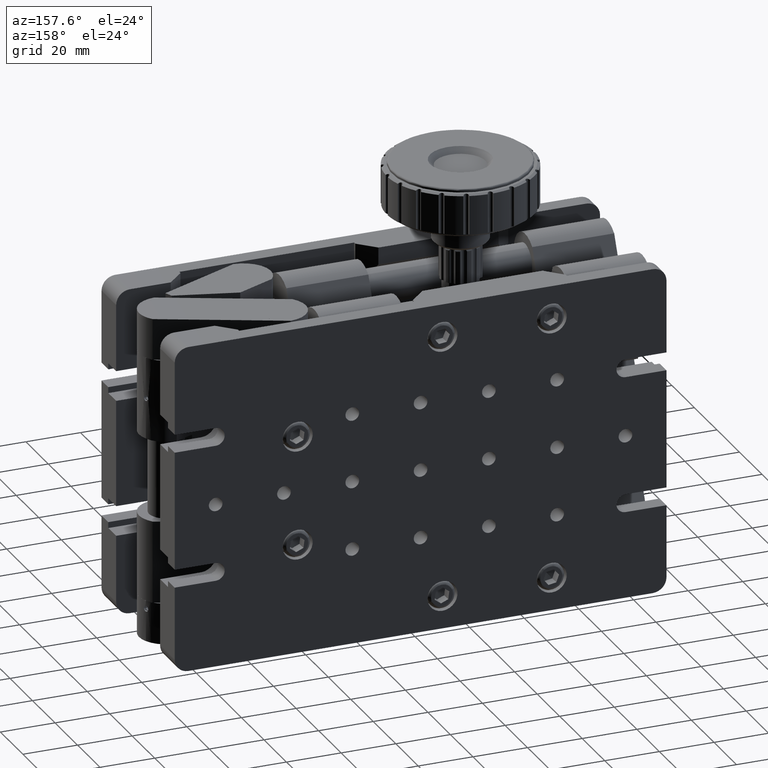
[diagram: clean part render]
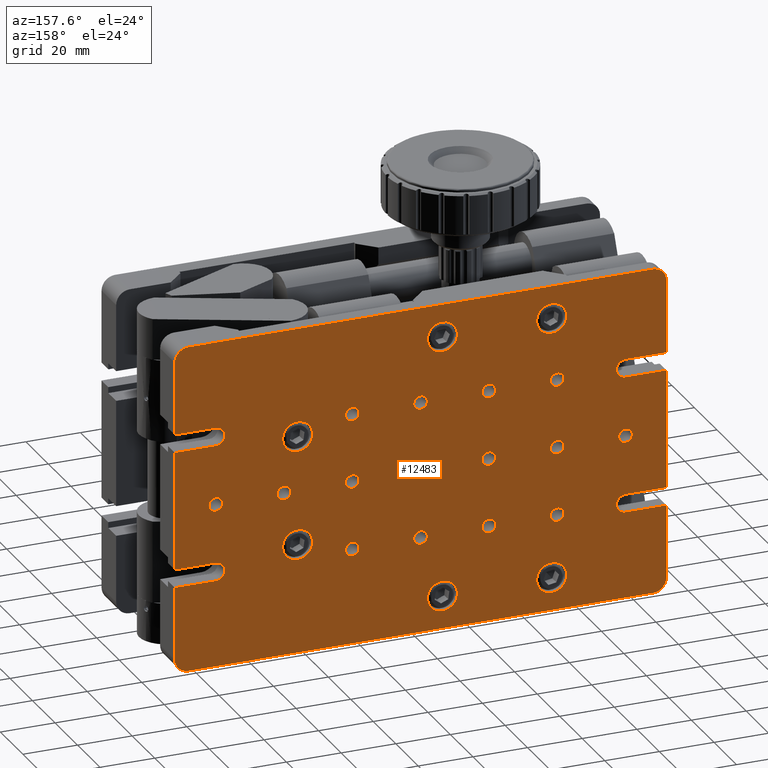
[diagram: same view with one face highlighted and labeled with its STEP entity id]
A machine part, auxiliary view. The second image highlights one B-rep face of the part: STEP entity #12483.
In plain terms, the highlighted planar face has unit normal (-0, -1, 0).
Its self-contained STEP definition (entity closure, byte-faithful):
#534 = DIRECTION ( 'NONE',  ( 0.0000000000000000000, 0.0000000000000000000, 1.000000000000000000 ) ) ;
#547 = CARTESIAN_POINT ( 'NONE',  ( 90.00000000000000000, 65.00000000000000000, 59.99999999999984400 ) ) ;
#565 = DIRECTION ( 'NONE',  ( 0.0000000000000000000, 0.0000000000000000000, 1.000000000000000000 ) ) ;
#655 = CARTESIAN_POINT ( 'NONE',  ( -74.99999999999998600, 65.00000000000000000, -28.30000000000051600 ) ) ;
#688 = EDGE_CURVE ( 'NONE', #40111, #31584, #56969, .T. ) ;
#901 = DIRECTION ( 'NONE',  ( 2.168404344971008900E-019, 1.000000000000000000, -6.938893903907193700E-018 ) ) ;
#1003 = ORIENTED_EDGE ( 'NONE', *, *, #1990, .F. ) ;
#1009 = CARTESIAN_POINT ( 'NONE',  ( -47.99999999999998600, 65.00000000000000000, -47.99999999999990100 ) ) ;
#1182 = CIRCLE ( 'NONE', #25761, 2.499999999999994200 ) ;
#1335 = AXIS2_PLACEMENT_3D ( 'NONE', #8837, #28188, #28830 ) ;
#1473 = ORIENTED_EDGE ( 'NONE', *, *, #30600, .F. ) ;
#1481 = DIRECTION ( 'NONE',  ( 2.168404344971008900E-019, 1.000000000000000000, -6.938893903907193700E-018 ) ) ;
#1528 = EDGE_LOOP ( 'NONE', ( #13879, #8594 ) ) ;
#1593 = LINE ( 'NONE', #34364, #29030 ) ;
#1642 = AXIS2_PLACEMENT_3D ( 'NONE', #24332, #39255, #43904 ) ;
#1675 = ORIENTED_EDGE ( 'NONE', *, *, #62410, .T. ) ;
#1727 = EDGE_CURVE ( 'NONE', #19492, #18528, #5895, .T. ) ;
#1754 = CARTESIAN_POINT ( 'NONE',  ( -1.350840173307179500E-015, 65.00000000000000000, -1.973579583168902200E-014 ) ) ;
#1823 = VERTEX_POINT ( 'NONE', #56544 ) ;
#1843 = EDGE_CURVE ( 'NONE', #58677, #55083, #26433, .T. ) ;
#1942 = DIRECTION ( 'NONE',  ( -1.000000000000000000, 2.168404344971008900E-019, 1.805559322863017600E-035 ) ) ;
#1956 = AXIS2_PLACEMENT_3D ( 'NONE', #24234, #4886, #33431 ) ;
#1990 = EDGE_CURVE ( 'NONE', #32599, #37748, #7411, .T. ) ;
#2027 = VERTEX_POINT ( 'NONE', #19475 ) ;
#2041 = AXIS2_PLACEMENT_3D ( 'NONE', #12025, #2913, #50978 ) ;
#2076 = ORIENTED_EDGE ( 'NONE', *, *, #34004, .F. ) ;
#2216 = CARTESIAN_POINT ( 'NONE',  ( -89.99999999999997200, 65.00000000000000000, 28.30000000000044500 ) ) ;
#2276 = CIRCLE ( 'NONE', #62947, 2.499999999999998700 ) ;
#2471 = CIRCLE ( 'NONE', #35584, 2.499999999999997800 ) ;
#2491 = CARTESIAN_POINT ( 'NONE',  ( -50.00000000000000000, 65.00000000000000000, 22.50000000000009900 ) ) ;
#2748 = EDGE_CURVE ( 'NONE', #50928, #3129, #16417, .T. ) ;
#2877 = CIRCLE ( 'NONE', #12762, 5.499999999999991100 ) ;
#2913 = DIRECTION ( 'NONE',  ( 2.168404344971008900E-019, 1.000000000000000000, -6.938893903907193700E-018 ) ) ;
#2986 = AXIS2_PLACEMENT_3D ( 'NONE', #46365, #26770, #36391 ) ;
#3047 = FACE_BOUND ( 'NONE', #27268, .T. ) ;
#3071 = DIRECTION ( 'NONE',  ( 1.775466667481986000E-034, 6.938893903907159800E-018, 1.000000000000000000 ) ) ;
#3129 = VERTEX_POINT ( 'NONE', #27518 ) ;
#3150 = LINE ( 'NONE', #39070, #35881 ) ;
#3156 = CARTESIAN_POINT ( 'NONE',  ( -75.00000000000001400, 65.00000000000000000, -2.499999999999498200 ) ) ;
#3196 = ORIENTED_EDGE ( 'NONE', *, *, #8914, .F. ) ;
#3480 = CARTESIAN_POINT ( 'NONE',  ( -75.00000000000001400, 65.00000000000000000, 5.039864049947794700E-013 ) ) ;
#3515 = CARTESIAN_POINT ( 'NONE',  ( 45.00000000000001400, 65.00000000000000000, -14.49999999999998200 ) ) ;
#3599 = EDGE_CURVE ( 'NONE', #20577, #16183, #15550, .T. ) ;
#3632 = DIRECTION ( 'NONE',  ( 0.0000000000000000000, 0.0000000000000000000, 1.000000000000000000 ) ) ;
#3633 = ORIENTED_EDGE ( 'NONE', *, *, #47307, .F. ) ;
#3805 = AXIS2_PLACEMENT_3D ( 'NONE', #11362, #30973, #20760 ) ;
#3870 = ORIENTED_EDGE ( 'NONE', *, *, #54249, .F. ) ;
#4018 = LINE ( 'NONE', #11151, #11606 ) ;
#4066 = ORIENTED_EDGE ( 'NONE', *, *, #56409, .T. ) ;
#4482 = VERTEX_POINT ( 'NONE', #6916 ) ;
#4570 = FACE_BOUND ( 'NONE', #49396, .T. ) ;
#4593 = EDGE_CURVE ( 'NONE', #41414, #1823, #34542, .T. ) ;
#4638 = EDGE_CURVE ( 'NONE', #55083, #58677, #62723, .T. ) ;
#4665 = VERTEX_POINT ( 'NONE', #52237 ) ;
#4886 = DIRECTION ( 'NONE',  ( 2.168404344971008900E-019, 1.000000000000000000, -6.938893903907193700E-018 ) ) ;
#4926 = VERTEX_POINT ( 'NONE', #6363 ) ;
#4955 = DIRECTION ( 'NONE',  ( 2.168404344971008900E-019, 1.000000000000000000, -6.938893903907193700E-018 ) ) ;
#5002 = LINE ( 'NONE', #655, #55226 ) ;
#5156 = DIRECTION ( 'NONE',  ( 2.168404344971008900E-019, 1.000000000000000000, -6.938893903907193700E-018 ) ) ;
#5214 = DIRECTION ( 'NONE',  ( 0.0000000000000000000, 0.0000000000000000000, 1.000000000000000000 ) ) ;
#5229 = DIRECTION ( 'NONE',  ( 2.168404344971008900E-019, 1.000000000000000000, -6.938893903907193700E-018 ) ) ;
#5247 = DIRECTION ( 'NONE',  ( -2.168404344971008900E-019, -1.000000000000000000, 6.938893903907159000E-018 ) ) ;
#5302 = FACE_BOUND ( 'NONE', #54898, .T. ) ;
#5428 = ORIENTED_EDGE ( 'NONE', *, *, #51623, .T. ) ;
#5523 = ORIENTED_EDGE ( 'NONE', *, *, #9095, .T. ) ;
#5552 = VECTOR ( 'NONE', #21967, 1000.000000000000000 ) ;
#5643 = DIRECTION ( 'NONE',  ( 2.168404344971008900E-019, 1.000000000000000000, -6.938893903907193700E-018 ) ) ;
#5708 = DIRECTION ( 'NONE',  ( 2.168404344971008900E-019, 1.000000000000000000, -6.938893903907193700E-018 ) ) ;
#5764 = EDGE_CURVE ( 'NONE', #33245, #56184, #51506, .T. ) ;
#5766 = ORIENTED_EDGE ( 'NONE', *, *, #62948, .F. ) ;
#5895 = LINE ( 'NONE', #35497, #20364 ) ;
#5934 = DIRECTION ( 'NONE',  ( 0.0000000000000000000, 0.0000000000000000000, 1.000000000000000000 ) ) ;
#6035 = EDGE_LOOP ( 'NONE', ( #9079, #33664 ) ) ;
#6291 = VERTEX_POINT ( 'NONE', #29705 ) ;
#6363 = CARTESIAN_POINT ( 'NONE',  ( 75.00000000000001400, 65.00000000000000000, 21.70000000000047200 ) ) ;
#6916 = CARTESIAN_POINT ( 'NONE',  ( -1.046087936344572400E-015, 65.00000000000000000, -2.500000000000018700 ) ) ;
#7173 = ORIENTED_EDGE ( 'NONE', *, *, #54859, .F. ) ;
#7174 = ORIENTED_EDGE ( 'NONE', *, *, #32270, .F. ) ;
#7411 = CIRCLE ( 'NONE', #62279, 2.499999999999995100 ) ;
#7544 = VECTOR ( 'NONE', #42578, 1000.000000000000000 ) ;
#7615 = LINE ( 'NONE', #55358, #48689 ) ;
#7762 = EDGE_CURVE ( 'NONE', #13780, #61347, #2877, .T. ) ;
#7828 = DIRECTION ( 'NONE',  ( 1.775466667481986000E-034, 6.938893903907159800E-018, 1.000000000000000000 ) ) ;
#7914 = VERTEX_POINT ( 'NONE', #28740 ) ;
#8168 = DIRECTION ( 'NONE',  ( 0.0000000000000000000, 0.0000000000000000000, 1.000000000000000000 ) ) ;
#8174 = AXIS2_PLACEMENT_3D ( 'NONE', #33508, #8591, #28372 ) ;
#8237 = CARTESIAN_POINT ( 'NONE',  ( -47.99999999999998600, 65.00000000000000000, -47.99999999999990100 ) ) ;
#8238 = DIRECTION ( 'NONE',  ( -2.168404344971008900E-019, -1.000000000000000000, 6.938893903907193700E-018 ) ) ;
#8263 = CARTESIAN_POINT ( 'NONE',  ( -50.00000000000000000, 65.00000000000000000, 25.00000000000010300 ) ) ;
#8464 = CIRCLE ( 'NONE', #27534, 5.499999999999991100 ) ;
#8591 = DIRECTION ( 'NONE',  ( 2.168404344971008900E-019, 1.000000000000000000, -6.938893903907193700E-018 ) ) ;
#8594 = ORIENTED_EDGE ( 'NONE', *, *, #35854, .F. ) ;
#8837 = CARTESIAN_POINT ( 'NONE',  ( 45.00000000000001400, 65.00000000000000000, 19.99999999999992900 ) ) ;
#8867 = VERTEX_POINT ( 'NONE', #36067 ) ;
#8914 = EDGE_CURVE ( 'NONE', #54046, #12780, #19466, .T. ) ;
#8968 = EDGE_LOOP ( 'NONE', ( #20258, #20071 ) ) ;
#9010 = DIRECTION ( 'NONE',  ( 2.168404344971008900E-019, 1.000000000000000000, -6.938893903907193700E-018 ) ) ;
#9079 = ORIENTED_EDGE ( 'NONE', *, *, #53574, .F. ) ;
#9095 = EDGE_CURVE ( 'NONE', #44804, #20577, #5002, .T. ) ;
#9134 = VERTEX_POINT ( 'NONE', #39620 ) ;
#9235 = DIRECTION ( 'NONE',  ( 2.168404344971008900E-019, 1.000000000000000000, -6.938893903907193700E-018 ) ) ;
#9397 = DIRECTION ( 'NONE',  ( -1.000000000000000000, 2.168404344971019900E-019, 1.541976423090491700E-016 ) ) ;
#9412 = AXIS2_PLACEMENT_3D ( 'NONE', #39816, #1481, #16558 ) ;
#9536 = EDGE_CURVE ( 'NONE', #46999, #35868, #59788, .T. ) ;
#9791 = LINE ( 'NONE', #42370, #7544 ) ;
#9805 = CARTESIAN_POINT ( 'NONE',  ( 25.00000000000000400, 65.00000000000000000, 24.99999999999957700 ) ) ;
#9890 = EDGE_CURVE ( 'NONE', #37748, #32599, #39927, .T. ) ;
#10058 = DIRECTION ( 'NONE',  ( 0.0000000000000000000, 0.0000000000000000000, 1.000000000000000000 ) ) ;
#10317 = EDGE_CURVE ( 'NONE', #61347, #13780, #18548, .T. ) ;
#10462 = AXIS2_PLACEMENT_3D ( 'NONE', #30918, #35601, #45371 ) ;
#10493 = DIRECTION ( 'NONE',  ( 1.000000000000000000, -2.168404344971003600E-019, 7.709882115452458400E-017 ) ) ;
#10584 = CARTESIAN_POINT ( 'NONE',  ( -25.00000000000000400, 65.00000000000000000, -22.50000000000014900 ) ) ;
#10631 = EDGE_CURVE ( 'NONE', #42682, #56965, #4018, .T. ) ;
#10639 = FACE_BOUND ( 'NONE', #1528, .T. ) ;
#10710 = CIRCLE ( 'NONE', #14060, 2.499999999999994200 ) ;
#10800 = DIRECTION ( 'NONE',  ( 2.168404344971008900E-019, 1.000000000000000000, -6.938893903907193700E-018 ) ) ;
#10953 = AXIS2_PLACEMENT_3D ( 'NONE', #35217, #5643, #534 ) ;
#11024 = EDGE_CURVE ( 'NONE', #42600, #2027, #38324, .T. ) ;
#11135 = ORIENTED_EDGE ( 'NONE', *, *, #51550, .T. ) ;
#11151 = CARTESIAN_POINT ( 'NONE',  ( -90.00000000000000000, 65.00000000000000000, 59.99999999999987200 ) ) ;
#11260 = CARTESIAN_POINT ( 'NONE',  ( -7.999999999999988500, 65.00000000000000000, -47.99999999999990800 ) ) ;
#11362 = CARTESIAN_POINT ( 'NONE',  ( 84.99999999999998600, 65.00000000000000000, -54.99999999999989300 ) ) ;
#11606 = VECTOR ( 'NONE', #59262, 1000.000000000000000 ) ;
#11726 = ORIENTED_EDGE ( 'NONE', *, *, #40327, .F. ) ;
#11777 = ORIENTED_EDGE ( 'NONE', *, *, #7762, .F. ) ;
#11876 = CARTESIAN_POINT ( 'NONE',  ( -89.99999999999997200, 65.00000000000000000, -28.30000000000050900 ) ) ;
#11974 = LINE ( 'NONE', #56837, #47803 ) ;
#12007 = ORIENTED_EDGE ( 'NONE', *, *, #37114, .F. ) ;
#12025 = CARTESIAN_POINT ( 'NONE',  ( -47.99999999999998600, 65.00000000000000000, 47.99999999999986500 ) ) ;
#12103 = CARTESIAN_POINT ( 'NONE',  ( 84.99999999999998600, 65.00000000000000000, 54.99999999999985100 ) ) ;
#12244 = VERTEX_POINT ( 'NONE', #41899 ) ;
#12265 = ORIENTED_EDGE ( 'NONE', *, *, #11024, .F. ) ;
#12289 = CARTESIAN_POINT ( 'NONE',  ( -47.99999999999998600, 65.00000000000000000, 47.99999999999986500 ) ) ;
#12483 = ADVANCED_FACE ( 'NONE', ( #34309, #45705, #35842, #60160, #38857, #17507, #31184, #24339, #35784, #3047, #53314, #10639, #42627, #61702, #32742, #4570, #18228, #63220, #22830, #35046, #5302, #22100 ), #19912, .F. ) ;
#12563 = EDGE_CURVE ( 'NONE', #35868, #18528, #7615, .T. ) ;
#12707 = AXIS2_PLACEMENT_3D ( 'NONE', #1009, #5708, #25470 ) ;
#12762 = AXIS2_PLACEMENT_3D ( 'NONE', #12289, #21282, #36401 ) ;
#12780 = VERTEX_POINT ( 'NONE', #10584 ) ;
#12841 = EDGE_CURVE ( 'NONE', #4482, #51910, #50147, .T. ) ;
#12972 = AXIS2_PLACEMENT_3D ( 'NONE', #35298, #49099, #5934 ) ;
#13159 = EDGE_CURVE ( 'NONE', #12780, #54046, #38074, .T. ) ;
#13189 = CARTESIAN_POINT ( 'NONE',  ( 75.00000000000001400, 65.00000000000000000, -1.067180197484626000E-012 ) ) ;
#13338 = CIRCLE ( 'NONE', #30341, 3.300000000000004300 ) ;
#13545 = DIRECTION ( 'NONE',  ( 0.0000000000000000000, 0.0000000000000000000, 1.000000000000000000 ) ) ;
#13780 = VERTEX_POINT ( 'NONE', #42176 ) ;
#13879 = ORIENTED_EDGE ( 'NONE', *, *, #29908, .F. ) ;
#14006 = VERTEX_POINT ( 'NONE', #40911 ) ;
#14060 = AXIS2_PLACEMENT_3D ( 'NONE', #49192, #29445, #10058 ) ;
#14105 = AXIS2_PLACEMENT_3D ( 'NONE', #21953, #56000, #29808 ) ;
#14765 = CARTESIAN_POINT ( 'NONE',  ( -90.00000000000000000, 65.00000000000000000, 21.70000000000045400 ) ) ;
#14788 = CIRCLE ( 'NONE', #3805, 4.999999999999990200 ) ;
#14952 = ORIENTED_EDGE ( 'NONE', *, *, #688, .F. ) ;
#14983 = CARTESIAN_POINT ( 'NONE',  ( 45.00000000000001400, 65.00000000000000000, -19.99999999999996800 ) ) ;
#15264 = VERTEX_POINT ( 'NONE', #22255 ) ;
#15302 = CARTESIAN_POINT ( 'NONE',  ( 74.99999999999998600, 65.00000000000000000, 28.30000000000047000 ) ) ;
#15335 = CARTESIAN_POINT ( 'NONE',  ( -50.00000000000000700, 65.00000000000000000, -2.499999999999840600 ) ) ;
#15352 = VERTEX_POINT ( 'NONE', #18590 ) ;
#15371 = AXIS2_PLACEMENT_3D ( 'NONE', #8237, #42288, #60849 ) ;
#15486 = ORIENTED_EDGE ( 'NONE', *, *, #15931, .F. ) ;
#15522 = EDGE_CURVE ( 'NONE', #25947, #4926, #28124, .T. ) ;
#15550 = CIRCLE ( 'NONE', #43193, 3.300000000000004300 ) ;
#15592 = DIRECTION ( 'NONE',  ( 0.0000000000000000000, 0.0000000000000000000, -1.000000000000000000 ) ) ;
#15598 = DIRECTION ( 'NONE',  ( 0.0000000000000000000, 0.0000000000000000000, 1.000000000000000000 ) ) ;
#15716 = VECTOR ( 'NONE', #7828, 1000.000000000000000 ) ;
#15787 = ORIENTED_EDGE ( 'NONE', *, *, #37778, .F. ) ;
#15909 = ORIENTED_EDGE ( 'NONE', *, *, #56234, .F. ) ;
#15931 = EDGE_CURVE ( 'NONE', #2027, #42600, #49338, .T. ) ;
#16127 = ORIENTED_EDGE ( 'NONE', *, *, #13159, .F. ) ;
#16183 = VERTEX_POINT ( 'NONE', #23627 ) ;
#16196 = ORIENTED_EDGE ( 'NONE', *, *, #18428, .T. ) ;
#16244 = ORIENTED_EDGE ( 'NONE', *, *, #30236, .F. ) ;
#16417 = CIRCLE ( 'NONE', #1956, 2.499999999999995100 ) ;
#16555 = EDGE_LOOP ( 'NONE', ( #37322, #32245 ) ) ;
#16558 = DIRECTION ( 'NONE',  ( 0.0000000000000000000, 0.0000000000000000000, 1.000000000000000000 ) ) ;
#16579 = CARTESIAN_POINT ( 'NONE',  ( 25.00000000000000000, 65.00000000000000000, 2.499999999999625200 ) ) ;
#17037 = CARTESIAN_POINT ( 'NONE',  ( 75.00000000000001400, 65.00000000000000000, 21.70000000000047200 ) ) ;
#17221 = ORIENTED_EDGE ( 'NONE', *, *, #33249, .T. ) ;
#17396 = EDGE_LOOP ( 'NONE', ( #35279, #1003 ) ) ;
#17408 = ORIENTED_EDGE ( 'NONE', *, *, #9536, .T. ) ;
#17469 = DIRECTION ( 'NONE',  ( 2.168404344971008900E-019, 1.000000000000000000, -6.938893903907193700E-018 ) ) ;
#17507 = FACE_BOUND ( 'NONE', #44066, .T. ) ;
#17509 = VERTEX_POINT ( 'NONE', #30136 ) ;
#17670 = CARTESIAN_POINT ( 'NONE',  ( 25.00000000000000400, 65.00000000000000000, -25.00000000000032000 ) ) ;
#17747 = VERTEX_POINT ( 'NONE', #37587 ) ;
#17777 = VERTEX_POINT ( 'NONE', #56729 ) ;
#17967 = CARTESIAN_POINT ( 'NONE',  ( 25.00000000000000000, 65.00000000000000000, -3.688839297160016200E-013 ) ) ;
#17980 = ORIENTED_EDGE ( 'NONE', *, *, #5764, .T. ) ;
#18144 = EDGE_CURVE ( 'NONE', #60776, #6291, #23998, .T. ) ;
#18228 = FACE_BOUND ( 'NONE', #27413, .T. ) ;
#18300 = DIRECTION ( 'NONE',  ( 0.0000000000000000000, 0.0000000000000000000, 1.000000000000000000 ) ) ;
#18357 = AXIS2_PLACEMENT_3D ( 'NONE', #45423, #59941, #55413 ) ;
#18428 = EDGE_CURVE ( 'NONE', #17747, #40827, #14788, .T. ) ;
#18528 = VERTEX_POINT ( 'NONE', #2216 ) ;
#18548 = CIRCLE ( 'NONE', #2041, 5.499999999999991100 ) ;
#18590 = CARTESIAN_POINT ( 'NONE',  ( 90.00000000000000000, 65.00000000000000000, -21.70000000000049700 ) ) ;
#18729 = CIRCLE ( 'NONE', #58869, 2.499999999999995100 ) ;
#18759 = CARTESIAN_POINT ( 'NONE',  ( -50.00000000000000700, 65.00000000000000000, 1.548382711104672500E-013 ) ) ;
#18936 = CIRCLE ( 'NONE', #47218, 2.499999999999998700 ) ;
#19068 = CARTESIAN_POINT ( 'NONE',  ( 25.00000000000000400, 65.00000000000000000, 27.49999999999957400 ) ) ;
#19167 = DIRECTION ( 'NONE',  ( 0.0000000000000000000, 0.0000000000000000000, 1.000000000000000000 ) ) ;
#19279 = VERTEX_POINT ( 'NONE', #3515 ) ;
#19466 = CIRCLE ( 'NONE', #44643, 2.499999999999995100 ) ;
#19475 = CARTESIAN_POINT ( 'NONE',  ( 25.00000000000000400, 65.00000000000000000, 22.49999999999958100 ) ) ;
#19492 = VERTEX_POINT ( 'NONE', #53300 ) ;
#19505 = DIRECTION ( 'NONE',  ( -1.775466667481985800E-034, -6.938893903907159000E-018, -1.000000000000000000 ) ) ;
#19560 = VERTEX_POINT ( 'NONE', #24325 ) ;
#19615 = EDGE_CURVE ( 'NONE', #23837, #43301, #36850, .T. ) ;
#19732 = EDGE_CURVE ( 'NONE', #4926, #39968, #29907, .T. ) ;
#19912 = PLANE ( 'NONE',  #36856 ) ;
#20071 = ORIENTED_EDGE ( 'NONE', *, *, #27318, .F. ) ;
#20142 = CARTESIAN_POINT ( 'NONE',  ( -89.99999999999998600, 65.00000000000000000, -59.99999999999990100 ) ) ;
#20155 = DIRECTION ( 'NONE',  ( 2.168404344971008900E-019, 1.000000000000000000, -6.938893903907193700E-018 ) ) ;
#20258 = ORIENTED_EDGE ( 'NONE', *, *, #38233, .F. ) ;
#20364 = VECTOR ( 'NONE', #55453, 1000.000000000000000 ) ;
#20577 = VERTEX_POINT ( 'NONE', #59874 ) ;
#20644 = AXIS2_PLACEMENT_3D ( 'NONE', #12103, #31965, #27041 ) ;
#20693 = CARTESIAN_POINT ( 'NONE',  ( -50.00000000000000000, 65.00000000000000000, 25.00000000000010300 ) ) ;
#20760 = DIRECTION ( 'NONE',  ( 0.0000000000000000000, 0.0000000000000000000, -1.000000000000000000 ) ) ;
#20798 = AXIS2_PLACEMENT_3D ( 'NONE', #17967, #32685, #52027 ) ;
#21282 = DIRECTION ( 'NONE',  ( 2.168404344971008900E-019, 1.000000000000000000, -6.938893903907193700E-018 ) ) ;
#21366 = CIRCLE ( 'NONE', #10462, 2.499999999999998700 ) ;
#21403 = EDGE_CURVE ( 'NONE', #9134, #52267, #25074, .T. ) ;
#21602 = CIRCLE ( 'NONE', #26114, 5.499999999999987600 ) ;
#21792 = CIRCLE ( 'NONE', #40966, 2.499999999999997800 ) ;
#21830 = DIRECTION ( 'NONE',  ( 0.0000000000000000000, 0.0000000000000000000, 1.000000000000000000 ) ) ;
#21831 = ORIENTED_EDGE ( 'NONE', *, *, #12563, .T. ) ;
#21953 = CARTESIAN_POINT ( 'NONE',  ( -25.00000000000000400, 65.00000000000000000, 24.99999999999975500 ) ) ;
#21967 = DIRECTION ( 'NONE',  ( 1.000000000000000000, -2.168404344970992700E-019, 2.312964634635737500E-016 ) ) ;
#22044 = VECTOR ( 'NONE', #57038, 1000.000000000000000 ) ;
#22050 = DIRECTION ( 'NONE',  ( 2.168404344971008900E-019, 1.000000000000000000, -6.938893903907193700E-018 ) ) ;
#22100 = FACE_BOUND ( 'NONE', #45671, .T. ) ;
#22102 = AXIS2_PLACEMENT_3D ( 'NONE', #9805, #38804, #53461 ) ;
#22219 = ORIENTED_EDGE ( 'NONE', *, *, #1843, .F. ) ;
#22255 = CARTESIAN_POINT ( 'NONE',  ( 90.00000000000000000, 65.00000000000000000, 54.99999999999985100 ) ) ;
#22319 = EDGE_LOOP ( 'NONE', ( #12265, #15486 ) ) ;
#22534 = CARTESIAN_POINT ( 'NONE',  ( 90.00000000000000000, 65.00000000000000000, 59.99999999999984400 ) ) ;
#22621 = CARTESIAN_POINT ( 'NONE',  ( 90.00000000000000000, 65.00000000000000000, 59.99999999999984400 ) ) ;
#22723 = CARTESIAN_POINT ( 'NONE',  ( 75.00000000000001400, 65.00000000000000000, -25.00000000000102000 ) ) ;
#22830 = FACE_BOUND ( 'NONE', #50872, .T. ) ;
#22938 = VERTEX_POINT ( 'NONE', #40630 ) ;
#22997 = EDGE_CURVE ( 'NONE', #17747, #12244, #23404, .T. ) ;
#23035 = VERTEX_POINT ( 'NONE', #3156 ) ;
#23045 = ORIENTED_EDGE ( 'NONE', *, *, #3599, .T. ) ;
#23225 = CARTESIAN_POINT ( 'NONE',  ( -50.00000000000000700, 65.00000000000000000, 2.500000000000145700 ) ) ;
#23404 = LINE ( 'NONE', #22534, #15716 ) ;
#23461 = AXIS2_PLACEMENT_3D ( 'NONE', #18759, #53037, #23872 ) ;
#23627 = CARTESIAN_POINT ( 'NONE',  ( -74.99999999999998600, 65.00000000000000000, -21.70000000000051100 ) ) ;
#23734 = DIRECTION ( 'NONE',  ( 0.0000000000000000000, 0.0000000000000000000, 1.000000000000000000 ) ) ;
#23837 = VERTEX_POINT ( 'NONE', #2491 ) ;
#23872 = DIRECTION ( 'NONE',  ( 0.0000000000000000000, 0.0000000000000000000, 1.000000000000000000 ) ) ;
#23998 = CIRCLE ( 'NONE', #31987, 2.499999999999997800 ) ;
#24156 = CARTESIAN_POINT ( 'NONE',  ( 3.802332240053021700E-015, 65.00000000000000000, 24.99999999999992900 ) ) ;
#24194 = ORIENTED_EDGE ( 'NONE', *, *, #4638, .F. ) ;
#24234 = CARTESIAN_POINT ( 'NONE',  ( 25.00000000000000400, 65.00000000000000000, -25.00000000000032000 ) ) ;
#24325 = CARTESIAN_POINT ( 'NONE',  ( -75.00000000000001400, 65.00000000000000000, 2.500000000000501800 ) ) ;
#24332 = CARTESIAN_POINT ( 'NONE',  ( 25.00000000000000400, 65.00000000000000000, 24.99999999999957700 ) ) ;
#24339 = FACE_BOUND ( 'NONE', #22319, .T. ) ;
#24487 = DIRECTION ( 'NONE',  ( 2.168404344971008900E-019, 1.000000000000000000, -6.938893903907193700E-018 ) ) ;
#25074 = CIRCLE ( 'NONE', #55362, 5.499999999999991100 ) ;
#25470 = DIRECTION ( 'NONE',  ( 0.0000000000000000000, 0.0000000000000000000, 1.000000000000000000 ) ) ;
#25513 = CARTESIAN_POINT ( 'NONE',  ( 4.107084477015628400E-015, 65.00000000000000000, -27.49999999999996800 ) ) ;
#25651 = LINE ( 'NONE', #37983, #63026 ) ;
#25653 = ORIENTED_EDGE ( 'NONE', *, *, #49417, .F. ) ;
#25761 = AXIS2_PLACEMENT_3D ( 'NONE', #46146, #61311, #51239 ) ;
#25881 = ORIENTED_EDGE ( 'NONE', *, *, #62591, .F. ) ;
#25947 = VERTEX_POINT ( 'NONE', #15302 ) ;
#25980 = CIRCLE ( 'NONE', #36461, 4.999999999999990200 ) ;
#26114 = AXIS2_PLACEMENT_3D ( 'NONE', #62862, #43448, #28342 ) ;
#26306 = AXIS2_PLACEMENT_3D ( 'NONE', #43120, #42695, #23734 ) ;
#26406 = DIRECTION ( 'NONE',  ( 2.168404344971008900E-019, 1.000000000000000000, -6.938893903907193700E-018 ) ) ;
#26428 = DIRECTION ( 'NONE',  ( 0.0000000000000000000, 0.0000000000000000000, 1.000000000000000000 ) ) ;
#26433 = CIRCLE ( 'NONE', #26306, 2.499999999999994200 ) ;
#26734 = DIRECTION ( 'NONE',  ( 0.0000000000000000000, 0.0000000000000000000, -1.000000000000000000 ) ) ;
#26770 = DIRECTION ( 'NONE',  ( 2.168404344971008900E-019, 1.000000000000000000, -6.938893903907193700E-018 ) ) ;
#26777 = CARTESIAN_POINT ( 'NONE',  ( -74.99999999999998600, 65.00000000000000000, 28.30000000000045200 ) ) ;
#26915 = DIRECTION ( 'NONE',  ( -1.000000000000000000, 2.168404344970976800E-019, -4.625929269271475100E-016 ) ) ;
#27012 = EDGE_LOOP ( 'NONE', ( #11777, #50734 ) ) ;
#27031 = EDGE_CURVE ( 'NONE', #19492, #36031, #25980, .T. ) ;
#27041 = DIRECTION ( 'NONE',  ( 0.0000000000000000000, 0.0000000000000000000, -1.000000000000000000 ) ) ;
#27268 = EDGE_LOOP ( 'NONE', ( #55628, #15909 ) ) ;
#27318 = EDGE_CURVE ( 'NONE', #17509, #36159, #10710, .T. ) ;
#27413 = EDGE_LOOP ( 'NONE', ( #16127, #3196 ) ) ;
#27437 = DIRECTION ( 'NONE',  ( 1.156482317317873500E-016, -6.938893903907159000E-018, -1.000000000000000000 ) ) ;
#27518 = CARTESIAN_POINT ( 'NONE',  ( 25.00000000000000400, 65.00000000000000000, -27.50000000000032000 ) ) ;
#27531 = ORIENTED_EDGE ( 'NONE', *, *, #31531, .F. ) ;
#27534 = AXIS2_PLACEMENT_3D ( 'NONE', #11260, #45319, #46375 ) ;
#27976 = VERTEX_POINT ( 'NONE', #25513 ) ;
#28056 = CIRCLE ( 'NONE', #15371, 5.499999999999991100 ) ;
#28124 = CIRCLE ( 'NONE', #18357, 3.300000000000004300 ) ;
#28188 = DIRECTION ( 'NONE',  ( 2.168404344971008900E-019, 1.000000000000000000, -6.938893903907193700E-018 ) ) ;
#28246 = CIRCLE ( 'NONE', #8174, 2.499999999999991100 ) ;
#28342 = DIRECTION ( 'NONE',  ( 0.0000000000000000000, 0.0000000000000000000, 1.000000000000000000 ) ) ;
#28372 = DIRECTION ( 'NONE',  ( 0.0000000000000000000, 0.0000000000000000000, 1.000000000000000000 ) ) ;
#28532 = DIRECTION ( 'NONE',  ( 2.168404344971008900E-019, 1.000000000000000000, -6.938893903907193700E-018 ) ) ;
#28740 = CARTESIAN_POINT ( 'NONE',  ( -50.00000000000000000, 65.00000000000000000, -22.49999999999979700 ) ) ;
#28830 = DIRECTION ( 'NONE',  ( 0.0000000000000000000, 0.0000000000000000000, 1.000000000000000000 ) ) ;
#29030 = VECTOR ( 'NONE', #10493, 1000.000000000000000 ) ;
#29202 = CIRCLE ( 'NONE', #10953, 2.499999999999997800 ) ;
#29390 = DIRECTION ( 'NONE',  ( 0.0000000000000000000, 0.0000000000000000000, 1.000000000000000000 ) ) ;
#29445 = DIRECTION ( 'NONE',  ( 2.168404344971008900E-019, 1.000000000000000000, -6.938893903907193700E-018 ) ) ;
#29705 = CARTESIAN_POINT ( 'NONE',  ( 75.00000000000001400, 65.00000000000000000, -2.500000000001069400 ) ) ;
#29762 = EDGE_CURVE ( 'NONE', #15352, #55215, #9791, .T. ) ;
#29778 = CARTESIAN_POINT ( 'NONE',  ( -84.99999999999997200, 65.00000000000000000, -54.99999999999990100 ) ) ;
#29808 = DIRECTION ( 'NONE',  ( 0.0000000000000000000, 0.0000000000000000000, 1.000000000000000000 ) ) ;
#29827 = ORIENTED_EDGE ( 'NONE', *, *, #61901, .F. ) ;
#29883 = DIRECTION ( 'NONE',  ( -2.168404344971008900E-019, -1.000000000000000000, 6.938893903907193700E-018 ) ) ;
#29907 = LINE ( 'NONE', #17037, #5552 ) ;
#29908 = EDGE_CURVE ( 'NONE', #54789, #39619, #53958, .T. ) ;
#29963 = CARTESIAN_POINT ( 'NONE',  ( -1.350840173307179500E-015, 65.00000000000000000, 2.499999999999974200 ) ) ;
#30061 = AXIS2_PLACEMENT_3D ( 'NONE', #17670, #28532, #19167 ) ;
#30136 = CARTESIAN_POINT ( 'NONE',  ( -25.00000000000000700, 65.00000000000000000, -2.500000000000193200 ) ) ;
#30236 = EDGE_CURVE ( 'NONE', #51042, #8867, #28056, .T. ) ;
#30341 = AXIS2_PLACEMENT_3D ( 'NONE', #22723, #8238, #26734 ) ;
#30396 = AXIS2_PLACEMENT_3D ( 'NONE', #20693, #901, #50235 ) ;
#30407 = AXIS2_PLACEMENT_3D ( 'NONE', #53985, #20155, #565 ) ;
#30576 = CARTESIAN_POINT ( 'NONE',  ( -25.00000000000000700, 65.00000000000000000, 2.499999999999800200 ) ) ;
#30600 = EDGE_CURVE ( 'NONE', #44804, #56184, #11974, .T. ) ;
#30712 = AXIS2_PLACEMENT_3D ( 'NONE', #56958, #22050, #46733 ) ;
#30918 = CARTESIAN_POINT ( 'NONE',  ( -50.00000000000000000, 65.00000000000000000, -24.99999999999979700 ) ) ;
#30973 = DIRECTION ( 'NONE',  ( 2.168404344971008900E-019, 1.000000000000000000, -6.938893903907193700E-018 ) ) ;
#31184 = FACE_BOUND ( 'NONE', #32894, .T. ) ;
#31275 = CARTESIAN_POINT ( 'NONE',  ( 25.00000000000000000, 65.00000000000000000, -2.500000000000367700 ) ) ;
#31469 = CIRCLE ( 'NONE', #63205, 5.499999999999987600 ) ;
#31531 = EDGE_CURVE ( 'NONE', #23035, #19560, #48400, .T. ) ;
#31584 = VERTEX_POINT ( 'NONE', #23225 ) ;
#31965 = DIRECTION ( 'NONE',  ( 2.168404344971008900E-019, 1.000000000000000000, -6.938893903907193700E-018 ) ) ;
#31987 = AXIS2_PLACEMENT_3D ( 'NONE', #46221, #26406, #46644 ) ;
#32066 = CARTESIAN_POINT ( 'NONE',  ( -74.99999999999998600, 65.00000000000000000, -21.70000000000051100 ) ) ;
#32245 = ORIENTED_EDGE ( 'NONE', *, *, #39256, .F. ) ;
#32270 = EDGE_CURVE ( 'NONE', #51910, #4482, #47625, .T. ) ;
#32333 = DIRECTION ( 'NONE',  ( 2.168404344971008900E-019, 1.000000000000000000, -6.938893903907193700E-018 ) ) ;
#32389 = EDGE_LOOP ( 'NONE', ( #49266, #38433 ) ) ;
#32427 = ORIENTED_EDGE ( 'NONE', *, *, #27031, .T. ) ;
#32541 = ORIENTED_EDGE ( 'NONE', *, *, #21403, .F. ) ;
#32599 = VERTEX_POINT ( 'NONE', #33059 ) ;
#32685 = DIRECTION ( 'NONE',  ( 2.168404344971008900E-019, 1.000000000000000000, -6.938893903907193700E-018 ) ) ;
#32742 = FACE_BOUND ( 'NONE', #60417, .T. ) ;
#32855 = CIRCLE ( 'NONE', #41556, 2.499999999999995100 ) ;
#32894 = EDGE_LOOP ( 'NONE', ( #36709, #25881 ) ) ;
#32981 = CARTESIAN_POINT ( 'NONE',  ( -84.99999999999998600, 65.00000000000000000, 59.99999999999987200 ) ) ;
#33004 = CARTESIAN_POINT ( 'NONE',  ( -75.00000000000001400, 65.00000000000000000, 21.70000000000045400 ) ) ;
#33023 = CIRCLE ( 'NONE', #60474, 5.499999999999987600 ) ;
#33044 = CIRCLE ( 'NONE', #12707, 5.499999999999991100 ) ;
#33059 = CARTESIAN_POINT ( 'NONE',  ( 4.107084477015628400E-015, 65.00000000000000000, 22.49999999999992900 ) ) ;
#33245 = VERTEX_POINT ( 'NONE', #51621 ) ;
#33249 = EDGE_CURVE ( 'NONE', #16183, #56965, #51240, .T. ) ;
#33431 = DIRECTION ( 'NONE',  ( 0.0000000000000000000, 0.0000000000000000000, 1.000000000000000000 ) ) ;
#33508 = CARTESIAN_POINT ( 'NONE',  ( -50.00000000000000700, 65.00000000000000000, 1.548382711104672500E-013 ) ) ;
#33516 = EDGE_CURVE ( 'NONE', #19279, #4665, #33023, .T. ) ;
#33664 = ORIENTED_EDGE ( 'NONE', *, *, #4593, .F. ) ;
#33832 = CARTESIAN_POINT ( 'NONE',  ( -89.99999999999997200, 65.00000000000000000, -21.70000000000051800 ) ) ;
#33972 = DIRECTION ( 'NONE',  ( 2.168404344971008900E-019, 1.000000000000000000, -6.938893903907193700E-018 ) ) ;
#34004 = EDGE_CURVE ( 'NONE', #52267, #9134, #36002, .T. ) ;
#34076 = VERTEX_POINT ( 'NONE', #61252 ) ;
#34126 = EDGE_CURVE ( 'NONE', #37441, #14006, #55696, .T. ) ;
#34207 = CIRCLE ( 'NONE', #20644, 4.999999999999990200 ) ;
#34309 = FACE_OUTER_BOUND ( 'NONE', #36008, .T. ) ;
#34364 = CARTESIAN_POINT ( 'NONE',  ( -89.99999999999998600, 65.00000000000000000, -59.99999999999990100 ) ) ;
#34542 = CIRCLE ( 'NONE', #48116, 2.499999999999995100 ) ;
#34695 = DIRECTION ( 'NONE',  ( 0.0000000000000000000, 0.0000000000000000000, -1.000000000000000000 ) ) ;
#34876 = CARTESIAN_POINT ( 'NONE',  ( 75.00000000000001400, 65.00000000000000000, -28.30000000000049800 ) ) ;
#35046 = FACE_BOUND ( 'NONE', #42088, .T. ) ;
#35059 = AXIS2_PLACEMENT_3D ( 'NONE', #54144, #29883, #15592 ) ;
#35130 = CARTESIAN_POINT ( 'NONE',  ( -89.99999999999998600, 65.00000000000000000, -54.99999999999987900 ) ) ;
#35139 = CIRCLE ( 'NONE', #47318, 2.499999999999997800 ) ;
#35217 = CARTESIAN_POINT ( 'NONE',  ( 50.00000000000000000, 65.00000000000000000, -1.973579583168902200E-014 ) ) ;
#35279 = ORIENTED_EDGE ( 'NONE', *, *, #9890, .F. ) ;
#35298 = CARTESIAN_POINT ( 'NONE',  ( -7.999999999999988500, 65.00000000000000000, -47.99999999999990800 ) ) ;
#35497 = CARTESIAN_POINT ( 'NONE',  ( -90.00000000000000000, 65.00000000000000000, 59.99999999999987200 ) ) ;
#35584 = AXIS2_PLACEMENT_3D ( 'NONE', #13189, #47269, #37740 ) ;
#35601 = DIRECTION ( 'NONE',  ( 2.168404344971008900E-019, 1.000000000000000000, -6.938893903907193700E-018 ) ) ;
#35784 = FACE_BOUND ( 'NONE', #32389, .T. ) ;
#35842 = FACE_BOUND ( 'NONE', #49542, .T. ) ;
#35854 = EDGE_CURVE ( 'NONE', #39619, #54789, #8464, .T. ) ;
#35868 = VERTEX_POINT ( 'NONE', #26777 ) ;
#35881 = VECTOR ( 'NONE', #39678, 1000.000000000000000 ) ;
#36002 = CIRCLE ( 'NONE', #30712, 5.499999999999991100 ) ;
#36008 = EDGE_LOOP ( 'NONE', ( #1473, #5523, #23045, #17221, #44265, #5428, #17408, #21831, #57881, #32427, #29827, #1675, #15787, #4066, #40894, #47050, #56359, #45812, #48039, #11135, #55110, #16196, #62123, #17980 ) ) ;
#36031 = VERTEX_POINT ( 'NONE', #32981 ) ;
#36067 = CARTESIAN_POINT ( 'NONE',  ( -47.99999999999998600, 65.00000000000000000, -42.49999999999991500 ) ) ;
#36159 = VERTEX_POINT ( 'NONE', #30576 ) ;
#36391 = DIRECTION ( 'NONE',  ( 0.0000000000000000000, 0.0000000000000000000, 1.000000000000000000 ) ) ;
#36401 = DIRECTION ( 'NONE',  ( 0.0000000000000000000, 0.0000000000000000000, 1.000000000000000000 ) ) ;
#36461 = AXIS2_PLACEMENT_3D ( 'NONE', #36745, #55237, #56746 ) ;
#36709 = ORIENTED_EDGE ( 'NONE', *, *, #2748, .F. ) ;
#36745 = CARTESIAN_POINT ( 'NONE',  ( -84.99999999999998600, 65.00000000000000000, 54.99999999999987200 ) ) ;
#36850 = CIRCLE ( 'NONE', #30396, 2.499999999999998700 ) ;
#36856 = AXIS2_PLACEMENT_3D ( 'NONE', #20142, #5247, #19505 ) ;
#37114 = EDGE_CURVE ( 'NONE', #14006, #37441, #21602, .T. ) ;
#37233 = CARTESIAN_POINT ( 'NONE',  ( -7.999999999999988500, 65.00000000000000000, -53.49999999999990800 ) ) ;
#37322 = ORIENTED_EDGE ( 'NONE', *, *, #45786, .F. ) ;
#37441 = VERTEX_POINT ( 'NONE', #50590 ) ;
#37587 = CARTESIAN_POINT ( 'NONE',  ( 90.00000000000000000, 65.00000000000000000, -54.99999999999989300 ) ) ;
#37673 = EDGE_CURVE ( 'NONE', #6291, #60776, #2471, .T. ) ;
#37733 = VERTEX_POINT ( 'NONE', #51737 ) ;
#37740 = DIRECTION ( 'NONE',  ( 0.0000000000000000000, 0.0000000000000000000, 1.000000000000000000 ) ) ;
#37746 = DIRECTION ( 'NONE',  ( 0.0000000000000000000, 0.0000000000000000000, -1.000000000000000000 ) ) ;
#37748 = VERTEX_POINT ( 'NONE', #56449 ) ;
#37778 = EDGE_CURVE ( 'NONE', #17777, #15264, #46652, .T. ) ;
#37983 = CARTESIAN_POINT ( 'NONE',  ( -90.00000000000000000, 65.00000000000000000, 59.99999999999987200 ) ) ;
#38074 = CIRCLE ( 'NONE', #30407, 2.499999999999995100 ) ;
#38233 = EDGE_CURVE ( 'NONE', #36159, #17509, #1182, .T. ) ;
#38276 = CARTESIAN_POINT ( 'NONE',  ( -7.999999999999988500, 65.00000000000000000, -42.49999999999992200 ) ) ;
#38324 = CIRCLE ( 'NONE', #22102, 2.499999999999995100 ) ;
#38433 = ORIENTED_EDGE ( 'NONE', *, *, #37673, .F. ) ;
#38804 = DIRECTION ( 'NONE',  ( 2.168404344971008900E-019, 1.000000000000000000, -6.938893903907193700E-018 ) ) ;
#38857 = FACE_BOUND ( 'NONE', #17396, .T. ) ;
#39070 = CARTESIAN_POINT ( 'NONE',  ( 74.99999999999998600, 65.00000000000000000, 28.30000000000047000 ) ) ;
#39198 = DIRECTION ( 'NONE',  ( 0.0000000000000000000, 0.0000000000000000000, 1.000000000000000000 ) ) ;
#39255 = DIRECTION ( 'NONE',  ( 2.168404344971008900E-019, 1.000000000000000000, -6.938893903907193700E-018 ) ) ;
#39256 = EDGE_CURVE ( 'NONE', #27976, #50408, #18729, .T. ) ;
#39574 = EDGE_CURVE ( 'NONE', #55215, #51912, #13338, .T. ) ;
#39619 = VERTEX_POINT ( 'NONE', #37233 ) ;
#39620 = CARTESIAN_POINT ( 'NONE',  ( -7.999999999999960000, 65.00000000000000000, 53.49999999999984400 ) ) ;
#39678 = DIRECTION ( 'NONE',  ( -1.000000000000000000, 2.168404344970992700E-019, -2.312964634635737500E-016 ) ) ;
#39816 = CARTESIAN_POINT ( 'NONE',  ( 3.802332240053021700E-015, 65.00000000000000000, 24.99999999999992900 ) ) ;
#39927 = CIRCLE ( 'NONE', #9412, 2.499999999999995100 ) ;
#39968 = VERTEX_POINT ( 'NONE', #40544 ) ;
#40111 = VERTEX_POINT ( 'NONE', #15335 ) ;
#40327 = EDGE_CURVE ( 'NONE', #19560, #23035, #21792, .T. ) ;
#40544 = CARTESIAN_POINT ( 'NONE',  ( 90.00000000000000000, 65.00000000000000000, 21.70000000000047500 ) ) ;
#40630 = CARTESIAN_POINT ( 'NONE',  ( -50.00000000000000000, 65.00000000000000000, -27.49999999999979700 ) ) ;
#40827 = VERTEX_POINT ( 'NONE', #59732 ) ;
#40894 = ORIENTED_EDGE ( 'NONE', *, *, #15522, .T. ) ;
#40907 = CARTESIAN_POINT ( 'NONE',  ( -75.00000000000001400, 65.00000000000000000, -24.99999999999944600 ) ) ;
#40911 = CARTESIAN_POINT ( 'NONE',  ( 45.00000000000001400, 65.00000000000000000, 25.49999999999991500 ) ) ;
#40950 = CARTESIAN_POINT ( 'NONE',  ( -47.99999999999998600, 65.00000000000000000, -53.49999999999990100 ) ) ;
#40966 = AXIS2_PLACEMENT_3D ( 'NONE', #61776, #17469, #18300 ) ;
#41414 = VERTEX_POINT ( 'NONE', #47313 ) ;
#41556 = AXIS2_PLACEMENT_3D ( 'NONE', #53668, #24487, #29390 ) ;
#41899 = CARTESIAN_POINT ( 'NONE',  ( 90.00000000000000000, 65.00000000000000000, -28.30000000000048700 ) ) ;
#42088 = EDGE_LOOP ( 'NONE', ( #3870, #56765 ) ) ;
#42176 = CARTESIAN_POINT ( 'NONE',  ( -47.99999999999998600, 65.00000000000000000, 53.49999999999985100 ) ) ;
#42288 = DIRECTION ( 'NONE',  ( 2.168404344971008900E-019, 1.000000000000000000, -6.938893903907193700E-018 ) ) ;
#42370 = CARTESIAN_POINT ( 'NONE',  ( 75.00000000000001400, 65.00000000000000000, -21.70000000000049300 ) ) ;
#42404 = DIRECTION ( 'NONE',  ( -2.168404344971008900E-019, -1.000000000000000000, 6.938893903907193700E-018 ) ) ;
#42578 = DIRECTION ( 'NONE',  ( -1.000000000000000000, 2.168404344971024800E-019, 2.312964634635737500E-016 ) ) ;
#42600 = VERTEX_POINT ( 'NONE', #19068 ) ;
#42627 = FACE_BOUND ( 'NONE', #62434, .T. ) ;
#42682 = VERTEX_POINT ( 'NONE', #14765 ) ;
#42695 = DIRECTION ( 'NONE',  ( 2.168404344971008900E-019, 1.000000000000000000, -6.938893903907193700E-018 ) ) ;
#43072 = DIRECTION ( 'NONE',  ( 0.0000000000000000000, 0.0000000000000000000, 1.000000000000000000 ) ) ;
#43120 = CARTESIAN_POINT ( 'NONE',  ( 25.00000000000000000, 65.00000000000000000, -3.688839297160016200E-013 ) ) ;
#43129 = CIRCLE ( 'NONE', #14105, 2.499999999999995100 ) ;
#43193 = AXIS2_PLACEMENT_3D ( 'NONE', #40907, #42404, #37746 ) ;
#43301 = VERTEX_POINT ( 'NONE', #48299 ) ;
#43448 = DIRECTION ( 'NONE',  ( 2.168404344971008900E-019, 1.000000000000000000, -6.938893903907193700E-018 ) ) ;
#43724 = CARTESIAN_POINT ( 'NONE',  ( 50.00000000000000000, 65.00000000000000000, 2.499999999999977800 ) ) ;
#43904 = DIRECTION ( 'NONE',  ( 0.0000000000000000000, 0.0000000000000000000, 1.000000000000000000 ) ) ;
#44066 = EDGE_LOOP ( 'NONE', ( #22219, #24194 ) ) ;
#44265 = ORIENTED_EDGE ( 'NONE', *, *, #10631, .F. ) ;
#44437 = DIRECTION ( 'NONE',  ( 0.0000000000000000000, 0.0000000000000000000, 1.000000000000000000 ) ) ;
#44643 = AXIS2_PLACEMENT_3D ( 'NONE', #62258, #47741, #8168 ) ;
#44804 = VERTEX_POINT ( 'NONE', #11876 ) ;
#45095 = VECTOR ( 'NONE', #56877, 1000.000000000000000 ) ;
#45127 = VECTOR ( 'NONE', #26915, 1000.000000000000000 ) ;
#45252 = VERTEX_POINT ( 'NONE', #43724 ) ;
#45319 = DIRECTION ( 'NONE',  ( 2.168404344971008900E-019, 1.000000000000000000, -6.938893903907193700E-018 ) ) ;
#45371 = DIRECTION ( 'NONE',  ( 0.0000000000000000000, 0.0000000000000000000, 1.000000000000000000 ) ) ;
#45423 = CARTESIAN_POINT ( 'NONE',  ( 75.00000000000001400, 65.00000000000000000, 24.99999999999888100 ) ) ;
#45671 = EDGE_LOOP ( 'NONE', ( #11726, #27531 ) ) ;
#45705 = FACE_BOUND ( 'NONE', #6035, .T. ) ;
#45786 = EDGE_CURVE ( 'NONE', #50408, #27976, #32855, .T. ) ;
#45812 = ORIENTED_EDGE ( 'NONE', *, *, #29762, .T. ) ;
#46146 = CARTESIAN_POINT ( 'NONE',  ( -25.00000000000000700, 65.00000000000000000, -1.943098627738453500E-013 ) ) ;
#46221 = CARTESIAN_POINT ( 'NONE',  ( 75.00000000000001400, 65.00000000000000000, -1.067180197484626000E-012 ) ) ;
#46289 = CARTESIAN_POINT ( 'NONE',  ( -25.00000000000000400, 65.00000000000000000, 24.99999999999975500 ) ) ;
#46365 = CARTESIAN_POINT ( 'NONE',  ( -1.350840173307179500E-015, 65.00000000000000000, -1.973579583168902200E-014 ) ) ;
#46375 = DIRECTION ( 'NONE',  ( 0.0000000000000000000, 0.0000000000000000000, 1.000000000000000000 ) ) ;
#46644 = DIRECTION ( 'NONE',  ( 0.0000000000000000000, 0.0000000000000000000, 1.000000000000000000 ) ) ;
#46652 = LINE ( 'NONE', #22621, #45095 ) ;
#46733 = DIRECTION ( 'NONE',  ( 0.0000000000000000000, 0.0000000000000000000, 1.000000000000000000 ) ) ;
#46999 = VERTEX_POINT ( 'NONE', #49241 ) ;
#47050 = ORIENTED_EDGE ( 'NONE', *, *, #19732, .T. ) ;
#47218 = AXIS2_PLACEMENT_3D ( 'NONE', #8263, #32333, #13545 ) ;
#47269 = DIRECTION ( 'NONE',  ( 2.168404344971008900E-019, 1.000000000000000000, -6.938893903907193700E-018 ) ) ;
#47307 = EDGE_CURVE ( 'NONE', #31584, #40111, #28246, .T. ) ;
#47313 = CARTESIAN_POINT ( 'NONE',  ( -25.00000000000000400, 65.00000000000000000, 22.49999999999975500 ) ) ;
#47318 = AXIS2_PLACEMENT_3D ( 'NONE', #49781, #5156, #39198 ) ;
#47539 = CARTESIAN_POINT ( 'NONE',  ( -50.00000000000000000, 65.00000000000000000, -24.99999999999979700 ) ) ;
#47625 = CIRCLE ( 'NONE', #47770, 2.499999999999994200 ) ;
#47741 = DIRECTION ( 'NONE',  ( 2.168404344971008900E-019, 1.000000000000000000, -6.938893903907193700E-018 ) ) ;
#47770 = AXIS2_PLACEMENT_3D ( 'NONE', #1754, #56039, #26428 ) ;
#47803 = VECTOR ( 'NONE', #27437, 1000.000000000000000 ) ;
#48039 = ORIENTED_EDGE ( 'NONE', *, *, #39574, .T. ) ;
#48116 = AXIS2_PLACEMENT_3D ( 'NONE', #46289, #51167, #21830 ) ;
#48186 = DIRECTION ( 'NONE',  ( 0.0000000000000000000, 0.0000000000000000000, 1.000000000000000000 ) ) ;
#48251 = EDGE_CURVE ( 'NONE', #15352, #39968, #55218, .T. ) ;
#48299 = CARTESIAN_POINT ( 'NONE',  ( -50.00000000000000000, 65.00000000000000000, 27.50000000000009900 ) ) ;
#48395 = VECTOR ( 'NONE', #3071, 1000.000000000000000 ) ;
#48400 = CIRCLE ( 'NONE', #59136, 2.499999999999997800 ) ;
#48689 = VECTOR ( 'NONE', #1942, 1000.000000000000000 ) ;
#48941 = CARTESIAN_POINT ( 'NONE',  ( 3.802332240053021700E-015, 65.00000000000000000, -24.99999999999997200 ) ) ;
#49099 = DIRECTION ( 'NONE',  ( 2.168404344971008900E-019, 1.000000000000000000, -6.938893903907193700E-018 ) ) ;
#49192 = CARTESIAN_POINT ( 'NONE',  ( -25.00000000000000700, 65.00000000000000000, -1.943098627738453500E-013 ) ) ;
#49241 = CARTESIAN_POINT ( 'NONE',  ( -75.00000000000001400, 65.00000000000000000, 21.70000000000045400 ) ) ;
#49266 = ORIENTED_EDGE ( 'NONE', *, *, #18144, .F. ) ;
#49338 = CIRCLE ( 'NONE', #1642, 2.499999999999995100 ) ;
#49356 = DIRECTION ( 'NONE',  ( 0.0000000000000000000, 0.0000000000000000000, 1.000000000000000000 ) ) ;
#49396 = EDGE_LOOP ( 'NONE', ( #12007, #54502 ) ) ;
#49417 = EDGE_CURVE ( 'NONE', #8867, #51042, #33044, .T. ) ;
#49542 = EDGE_LOOP ( 'NONE', ( #7174, #59723 ) ) ;
#49567 = DIRECTION ( 'NONE',  ( 1.000000000000000000, -2.168404344971008900E-019, -1.805559322863017600E-035 ) ) ;
#49781 = CARTESIAN_POINT ( 'NONE',  ( 50.00000000000000000, 65.00000000000000000, -1.973579583168902200E-014 ) ) ;
#50147 = CIRCLE ( 'NONE', #2986, 2.499999999999994200 ) ;
#50235 = DIRECTION ( 'NONE',  ( 0.0000000000000000000, 0.0000000000000000000, 1.000000000000000000 ) ) ;
#50408 = VERTEX_POINT ( 'NONE', #51536 ) ;
#50590 = CARTESIAN_POINT ( 'NONE',  ( 45.00000000000001400, 65.00000000000000000, 14.49999999999992900 ) ) ;
#50625 = CARTESIAN_POINT ( 'NONE',  ( 75.00000000000001400, 65.00000000000000000, -28.30000000000049800 ) ) ;
#50734 = ORIENTED_EDGE ( 'NONE', *, *, #10317, .F. ) ;
#50846 = DIRECTION ( 'NONE',  ( 1.000000000000000000, -2.168404344970992700E-019, 2.312964634635737500E-016 ) ) ;
#50872 = EDGE_LOOP ( 'NONE', ( #5766, #56012 ) ) ;
#50928 = VERTEX_POINT ( 'NONE', #63143 ) ;
#50947 = VECTOR ( 'NONE', #50846, 1000.000000000000000 ) ;
#50978 = DIRECTION ( 'NONE',  ( 0.0000000000000000000, 0.0000000000000000000, 1.000000000000000000 ) ) ;
#51042 = VERTEX_POINT ( 'NONE', #40950 ) ;
#51167 = DIRECTION ( 'NONE',  ( 2.168404344971008900E-019, 1.000000000000000000, -6.938893903907193700E-018 ) ) ;
#51239 = DIRECTION ( 'NONE',  ( 0.0000000000000000000, 0.0000000000000000000, 1.000000000000000000 ) ) ;
#51240 = LINE ( 'NONE', #32066, #45127 ) ;
#51506 = CIRCLE ( 'NONE', #58395, 4.999999999999990200 ) ;
#51536 = CARTESIAN_POINT ( 'NONE',  ( 3.802332240053021700E-015, 65.00000000000000000, -22.49999999999997500 ) ) ;
#51550 = EDGE_CURVE ( 'NONE', #51912, #12244, #56302, .T. ) ;
#51621 = CARTESIAN_POINT ( 'NONE',  ( -84.99999999999997200, 65.00000000000000000, -59.99999999999990100 ) ) ;
#51623 = EDGE_CURVE ( 'NONE', #42682, #46999, #53260, .T. ) ;
#51737 = CARTESIAN_POINT ( 'NONE',  ( 84.99999999999994300, 65.00000000000000000, 59.99999999999984400 ) ) ;
#51910 = VERTEX_POINT ( 'NONE', #29963 ) ;
#51912 = VERTEX_POINT ( 'NONE', #34876 ) ;
#51991 = DIRECTION ( 'NONE',  ( 2.168404344971008900E-019, 1.000000000000000000, -6.938893903907193700E-018 ) ) ;
#52027 = DIRECTION ( 'NONE',  ( 0.0000000000000000000, 0.0000000000000000000, 1.000000000000000000 ) ) ;
#52116 = CARTESIAN_POINT ( 'NONE',  ( 75.00000000000001400, 65.00000000000000000, -21.70000000000049300 ) ) ;
#52237 = CARTESIAN_POINT ( 'NONE',  ( 45.00000000000001400, 65.00000000000000000, -25.49999999999996800 ) ) ;
#52267 = VERTEX_POINT ( 'NONE', #62094 ) ;
#53037 = DIRECTION ( 'NONE',  ( 2.168404344971008900E-019, 1.000000000000000000, -6.938893903907193700E-018 ) ) ;
#53260 = LINE ( 'NONE', #33004, #22044 ) ;
#53300 = CARTESIAN_POINT ( 'NONE',  ( -90.00000000000000000, 65.00000000000000000, 54.99999999999987200 ) ) ;
#53314 = FACE_BOUND ( 'NONE', #60262, .T. ) ;
#53374 = CARTESIAN_POINT ( 'NONE',  ( 75.00000000000001400, 65.00000000000000000, 2.499999999998930600 ) ) ;
#53461 = DIRECTION ( 'NONE',  ( 0.0000000000000000000, 0.0000000000000000000, 1.000000000000000000 ) ) ;
#53495 = CARTESIAN_POINT ( 'NONE',  ( -25.00000000000000400, 65.00000000000000000, -27.50000000000014200 ) ) ;
#53574 = EDGE_CURVE ( 'NONE', #1823, #41414, #43129, .T. ) ;
#53668 = CARTESIAN_POINT ( 'NONE',  ( 3.802332240053021700E-015, 65.00000000000000000, -24.99999999999997200 ) ) ;
#53720 = CARTESIAN_POINT ( 'NONE',  ( 45.00000000000001400, 65.00000000000000000, -19.99999999999996800 ) ) ;
#53958 = CIRCLE ( 'NONE', #12972, 5.499999999999991100 ) ;
#53985 = CARTESIAN_POINT ( 'NONE',  ( -25.00000000000000400, 65.00000000000000000, -25.00000000000014200 ) ) ;
#54046 = VERTEX_POINT ( 'NONE', #53495 ) ;
#54144 = CARTESIAN_POINT ( 'NONE',  ( -75.00000000000001400, 65.00000000000000000, 25.00000000000045100 ) ) ;
#54249 = EDGE_CURVE ( 'NONE', #7914, #22938, #21366, .T. ) ;
#54502 = ORIENTED_EDGE ( 'NONE', *, *, #34126, .F. ) ;
#54789 = VERTEX_POINT ( 'NONE', #38276 ) ;
#54859 = EDGE_CURVE ( 'NONE', #4665, #19279, #31469, .T. ) ;
#54862 = EDGE_CURVE ( 'NONE', #45252, #34076, #29202, .T. ) ;
#54898 = EDGE_LOOP ( 'NONE', ( #3633, #14952 ) ) ;
#55083 = VERTEX_POINT ( 'NONE', #31275 ) ;
#55110 = ORIENTED_EDGE ( 'NONE', *, *, #22997, .F. ) ;
#55215 = VERTEX_POINT ( 'NONE', #52116 ) ;
#55218 = LINE ( 'NONE', #547, #48395 ) ;
#55226 = VECTOR ( 'NONE', #49567, 1000.000000000000000 ) ;
#55237 = DIRECTION ( 'NONE',  ( 2.168404344971008900E-019, 1.000000000000000000, -6.938893903907193700E-018 ) ) ;
#55358 = CARTESIAN_POINT ( 'NONE',  ( -74.99999999999998600, 65.00000000000000000, 28.30000000000045200 ) ) ;
#55362 = AXIS2_PLACEMENT_3D ( 'NONE', #62077, #10800, #44437 ) ;
#55413 = DIRECTION ( 'NONE',  ( 0.0000000000000000000, 0.0000000000000000000, -1.000000000000000000 ) ) ;
#55453 = DIRECTION ( 'NONE',  ( 1.156482317317873500E-016, -6.938893903907159000E-018, -1.000000000000000000 ) ) ;
#55480 = CIRCLE ( 'NONE', #30061, 2.499999999999995100 ) ;
#55628 = ORIENTED_EDGE ( 'NONE', *, *, #54862, .F. ) ;
#55696 = CIRCLE ( 'NONE', #1335, 5.499999999999987600 ) ;
#56000 = DIRECTION ( 'NONE',  ( 2.168404344971008900E-019, 1.000000000000000000, -6.938893903907193700E-018 ) ) ;
#56012 = ORIENTED_EDGE ( 'NONE', *, *, #19615, .F. ) ;
#56039 = DIRECTION ( 'NONE',  ( 2.168404344971008900E-019, 1.000000000000000000, -6.938893903907193700E-018 ) ) ;
#56184 = VERTEX_POINT ( 'NONE', #35130 ) ;
#56234 = EDGE_CURVE ( 'NONE', #34076, #45252, #35139, .T. ) ;
#56302 = LINE ( 'NONE', #50625, #50947 ) ;
#56356 = EDGE_CURVE ( 'NONE', #33245, #40827, #1593, .T. ) ;
#56359 = ORIENTED_EDGE ( 'NONE', *, *, #48251, .F. ) ;
#56409 = EDGE_CURVE ( 'NONE', #17777, #25947, #3150, .T. ) ;
#56449 = CARTESIAN_POINT ( 'NONE',  ( 3.802332240053021700E-015, 65.00000000000000000, 27.49999999999992500 ) ) ;
#56544 = CARTESIAN_POINT ( 'NONE',  ( -25.00000000000000400, 65.00000000000000000, 27.49999999999975100 ) ) ;
#56729 = CARTESIAN_POINT ( 'NONE',  ( 89.99999999999997200, 65.00000000000000000, 28.30000000000046600 ) ) ;
#56746 = DIRECTION ( 'NONE',  ( 0.0000000000000000000, 0.0000000000000000000, -1.000000000000000000 ) ) ;
#56765 = ORIENTED_EDGE ( 'NONE', *, *, #58059, .F. ) ;
#56837 = CARTESIAN_POINT ( 'NONE',  ( -90.00000000000000000, 65.00000000000000000, 59.99999999999987200 ) ) ;
#56877 = DIRECTION ( 'NONE',  ( 1.775466667481986000E-034, 6.938893903907159800E-018, 1.000000000000000000 ) ) ;
#56958 = CARTESIAN_POINT ( 'NONE',  ( -7.999999999999960000, 65.00000000000000000, 47.99999999999985800 ) ) ;
#56965 = VERTEX_POINT ( 'NONE', #33832 ) ;
#56969 = CIRCLE ( 'NONE', #23461, 2.499999999999991100 ) ;
#57038 = DIRECTION ( 'NONE',  ( 1.000000000000000000, -2.168404344971008900E-019, -1.805559322863017600E-035 ) ) ;
#57173 = CARTESIAN_POINT ( 'NONE',  ( -47.99999999999998600, 65.00000000000000000, 42.49999999999986500 ) ) ;
#57881 = ORIENTED_EDGE ( 'NONE', *, *, #1727, .F. ) ;
#58059 = EDGE_CURVE ( 'NONE', #22938, #7914, #2276, .T. ) ;
#58395 = AXIS2_PLACEMENT_3D ( 'NONE', #29778, #59158, #34695 ) ;
#58414 = ORIENTED_EDGE ( 'NONE', *, *, #33516, .F. ) ;
#58677 = VERTEX_POINT ( 'NONE', #16579 ) ;
#58869 = AXIS2_PLACEMENT_3D ( 'NONE', #48941, #4955, #49356 ) ;
#59136 = AXIS2_PLACEMENT_3D ( 'NONE', #3480, #51991, #3632 ) ;
#59158 = DIRECTION ( 'NONE',  ( 2.168404344971008900E-019, 1.000000000000000000, -6.938893903907193700E-018 ) ) ;
#59262 = DIRECTION ( 'NONE',  ( 1.156482317317873500E-016, -6.938893903907159000E-018, -1.000000000000000000 ) ) ;
#59723 = ORIENTED_EDGE ( 'NONE', *, *, #12841, .F. ) ;
#59732 = CARTESIAN_POINT ( 'NONE',  ( 84.99999999999995700, 65.00000000000000000, -59.99999999999988600 ) ) ;
#59788 = CIRCLE ( 'NONE', #35059, 3.300000000000004300 ) ;
#59874 = CARTESIAN_POINT ( 'NONE',  ( -74.99999999999998600, 65.00000000000000000, -28.30000000000051600 ) ) ;
#59941 = DIRECTION ( 'NONE',  ( -2.168404344971008900E-019, -1.000000000000000000, 6.938893903907193700E-018 ) ) ;
#60160 = FACE_BOUND ( 'NONE', #16555, .T. ) ;
#60262 = EDGE_LOOP ( 'NONE', ( #25653, #16244 ) ) ;
#60417 = EDGE_LOOP ( 'NONE', ( #58414, #7173 ) ) ;
#60474 = AXIS2_PLACEMENT_3D ( 'NONE', #53720, #9235, #48186 ) ;
#60776 = VERTEX_POINT ( 'NONE', #53374 ) ;
#60849 = DIRECTION ( 'NONE',  ( 0.0000000000000000000, 0.0000000000000000000, 1.000000000000000000 ) ) ;
#61252 = CARTESIAN_POINT ( 'NONE',  ( 50.00000000000000000, 65.00000000000000000, -2.500000000000022200 ) ) ;
#61311 = DIRECTION ( 'NONE',  ( 2.168404344971008900E-019, 1.000000000000000000, -6.938893903907193700E-018 ) ) ;
#61347 = VERTEX_POINT ( 'NONE', #57173 ) ;
#61702 = FACE_BOUND ( 'NONE', #27012, .T. ) ;
#61776 = CARTESIAN_POINT ( 'NONE',  ( -75.00000000000001400, 65.00000000000000000, 5.039864049947794700E-013 ) ) ;
#61901 = EDGE_CURVE ( 'NONE', #37733, #36031, #25651, .T. ) ;
#62077 = CARTESIAN_POINT ( 'NONE',  ( -7.999999999999960000, 65.00000000000000000, 47.99999999999985800 ) ) ;
#62094 = CARTESIAN_POINT ( 'NONE',  ( -7.999999999999960000, 65.00000000000000000, 42.49999999999985800 ) ) ;
#62123 = ORIENTED_EDGE ( 'NONE', *, *, #56356, .F. ) ;
#62258 = CARTESIAN_POINT ( 'NONE',  ( -25.00000000000000400, 65.00000000000000000, -25.00000000000014200 ) ) ;
#62279 = AXIS2_PLACEMENT_3D ( 'NONE', #24156, #33972, #5214 ) ;
#62410 = EDGE_CURVE ( 'NONE', #37733, #15264, #34207, .T. ) ;
#62434 = EDGE_LOOP ( 'NONE', ( #32541, #2076 ) ) ;
#62591 = EDGE_CURVE ( 'NONE', #3129, #50928, #55480, .T. ) ;
#62723 = CIRCLE ( 'NONE', #20798, 2.499999999999994200 ) ;
#62862 = CARTESIAN_POINT ( 'NONE',  ( 45.00000000000001400, 65.00000000000000000, 19.99999999999992900 ) ) ;
#62947 = AXIS2_PLACEMENT_3D ( 'NONE', #47539, #9010, #43072 ) ;
#62948 = EDGE_CURVE ( 'NONE', #43301, #23837, #18936, .T. ) ;
#63026 = VECTOR ( 'NONE', #9397, 1000.000000000000000 ) ;
#63143 = CARTESIAN_POINT ( 'NONE',  ( 25.00000000000000400, 65.00000000000000000, -22.50000000000032700 ) ) ;
#63205 = AXIS2_PLACEMENT_3D ( 'NONE', #14983, #5229, #15598 ) ;
#63220 = FACE_BOUND ( 'NONE', #8968, .T. ) ;